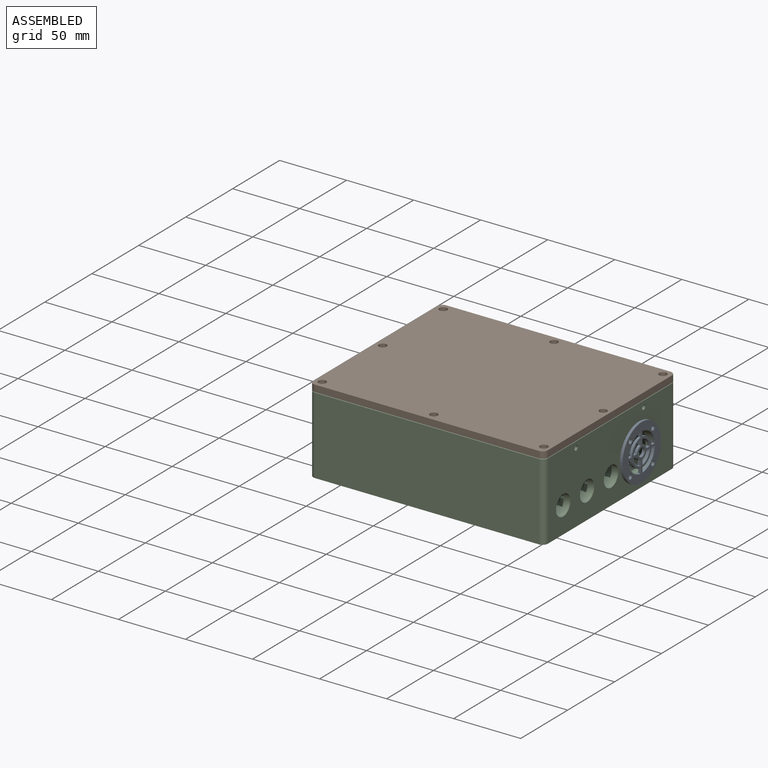
[diagram: assembled view]
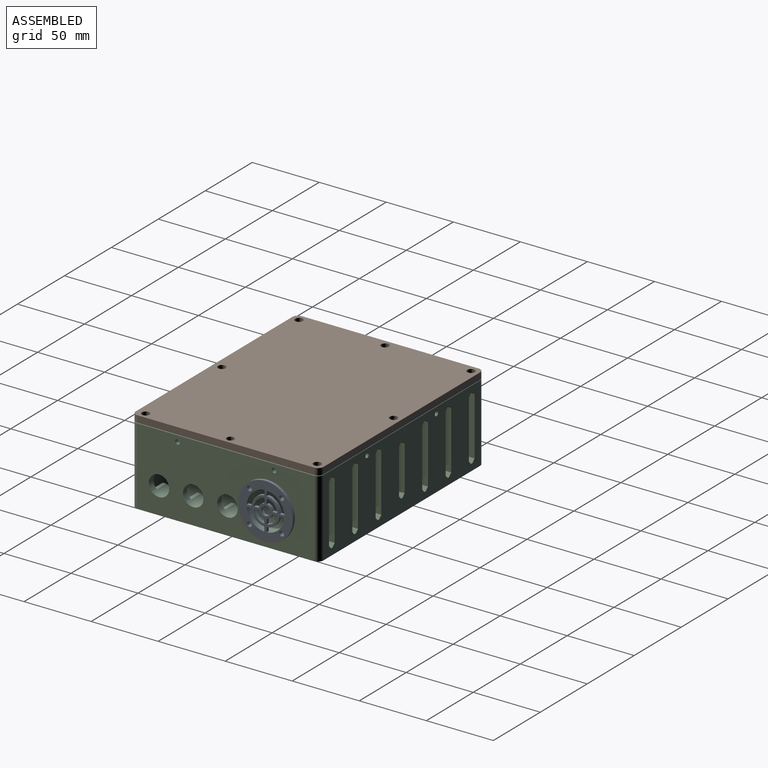
[diagram: assembled view, second angle]
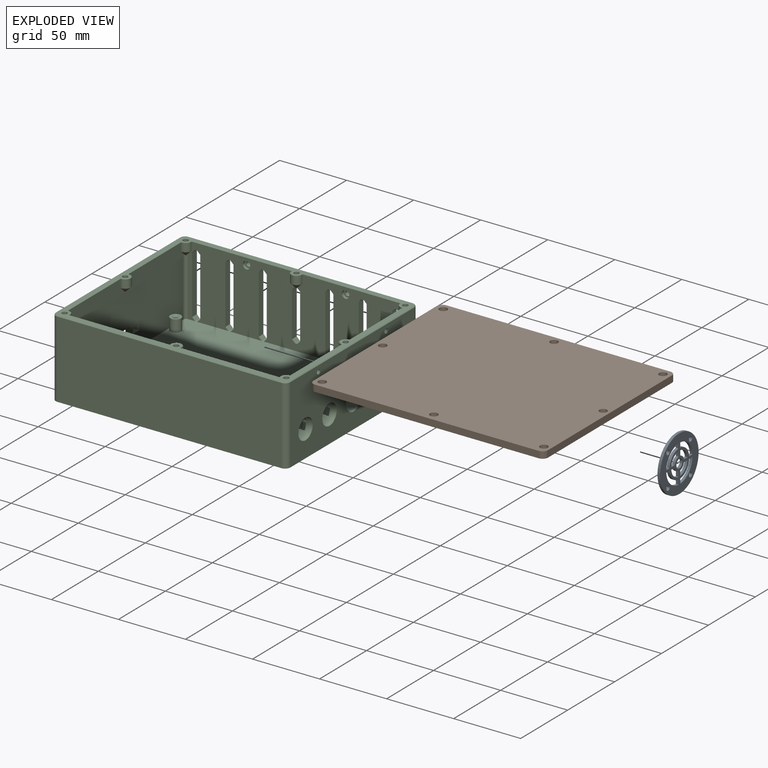
[diagram: exploded view]
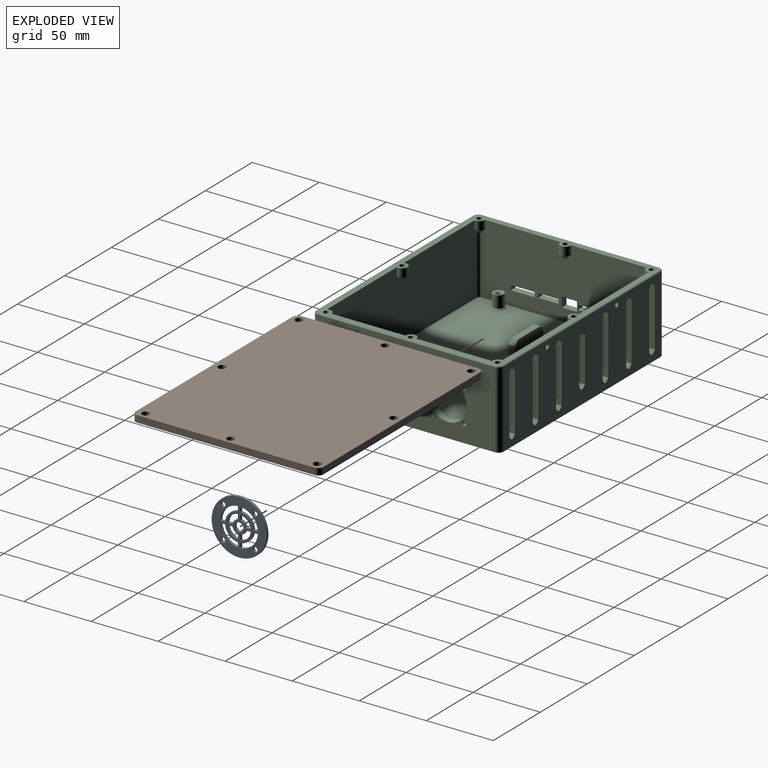
[diagram: exploded view, second angle]
ASSEMBLY  parts=3 mates=2
PART A: 40 faces, bbox 2x41x41 mm
  f0: plane 3.51x2mm, normal (0,0,1), area 7mm2, adj f17,f30,f32,f33
  f1: plane 3.74x2mm, normal (0,0,1), area 7.5mm2, adj f17,f21,f31,f32
  f2: plane 3.74x2mm, normal (0,0,1), area 7.5mm2, adj f12,f17,f20,f32
  f3: plane 3.74x2mm, normal (0,0,-1), area 7.5mm2, adj f10,f16,f17,f32
  f4: plane 3.51x2mm, normal (0,0,-1), area 7mm2, adj f13,f17,f18,f32
  f5: plane 3.74x2mm, normal (0,0,-1), area 7.5mm2, adj f9,f11,f17,f32
  f6: plane 3.51x2mm, normal (0,0,-1), area 7mm2, adj f14,f17,f32,f34
  f7: plane 3.51x2mm, normal (0,0,1), area 7mm2, adj f8,f15,f17,f32
  f8: cylinder r=14mm len=13.07mm, axis (-1,0,0), area 40.4mm2, adj f7,f17,f26,f32
  f9: cylinder r=5mm len=4.02mm, axis (-1,0,0), area 12.1mm2, adj f5,f17,f25,f32
  f10: cylinder r=5mm len=4.02mm, axis (-1,0,0), area 12.1mm2, adj f3,f17,f23,f32
  f11: cylinder r=8.7mm len=7.75mm, axis (-1,0,0), area 23.7mm2, adj f5,f17,f25,f32
  f12: cylinder r=8.7mm len=7.75mm, axis (-1,0,0), area 23.7mm2, adj f2,f17,f24,f32
  f13: cylinder r=10.5mm len=9.56mm, axis (-1,0,0), area 29.4mm2, adj f4,f17,f29,f32
  f14: cylinder r=10.5mm len=9.56mm, axis (-1,0,0), area 29.4mm2, adj f6,f17,f27,f32
  f15: cylinder r=10.5mm len=9.56mm, axis (-1,0,0), area 29.4mm2, adj f7,f17,f26,f32
  f16: cylinder r=8.7mm len=7.75mm, axis (-1,0,0), area 23.7mm2, adj f3,f17,f23,f32
  f17: plane 41x41mm, normal (1,0,0), area 872.9mm2, adj f0,f1,f2,f3,f4,f5,f6,f7
  f18: cylinder r=14mm len=13.07mm, axis (-1,0,0), area 40.4mm2, adj f4,f17,f29,f32
  f19: cylinder r=3.2mm len=6.4mm, axis (-1,0,0), area 40.2mm2, adj f17,f32
  f20: cylinder r=5mm len=4.02mm, axis (-1,0,0), area 12.1mm2, adj f2,f17,f24,f32
  f21: cylinder r=5mm len=4.02mm, axis (-1,0,0), area 12.1mm2, adj f1,f17,f22,f32
  f22: plane 3.74x2mm, normal (0,-1,0), area 7.5mm2, adj f17,f21,f31,f32
  f23: plane 3.74x2mm, normal (0,-1,0), area 7.5mm2, adj f10,f16,f17,f32
  f24: plane 3.74x2mm, normal (0,1,0), area 7.5mm2, adj f12,f17,f20,f32
  f25: plane 3.74x2mm, normal (0,1,0), area 7.5mm2, adj f9,f11,f17,f32
  f26: plane 3.51x2mm, normal (0,-1,0), area 7mm2, adj f8,f15,f17,f32
  f27: plane 3.51x2mm, normal (0,-1,0), area 7mm2, adj f14,f17,f32,f34
  f28: plane 3.51x2mm, normal (0,1,0), area 7mm2, adj f17,f30,f32,f33
  f29: plane 3.51x2mm, normal (0,1,0), area 7mm2, adj f13,f17,f18,f32
  f30: cylinder r=10.5mm len=9.56mm, axis (-1,0,0), area 29.4mm2, adj f0,f17,f28,f32
  f31: cylinder r=8.7mm len=7.75mm, axis (-1,0,0), area 23.7mm2, adj f1,f17,f22,f32
  f32: plane 41x41mm, normal (-1,0,0), area 872.9mm2, adj f0,f1,f2,f3,f4,f5,f6,f7
  f33: cylinder r=14mm len=13.07mm, axis (-1,0,0), area 40.4mm2, adj f0,f17,f28,f32
  f34: cylinder r=14mm len=13.07mm, axis (-1,0,0), area 40.4mm2, adj f6,f17,f27,f32
  f35: cylinder r=1.75mm len=3.5mm, axis (1,0,0), area 22mm2, adj f17,f32
  f36: cylinder r=1.75mm len=3.5mm, axis (1,0,0), area 22mm2, adj f17,f32
  f37: cylinder r=1.75mm len=3.5mm, axis (1,0,0), area 22mm2, adj f17,f32
  f38: cylinder r=1.75mm len=3.5mm, axis (1,0,0), area 22mm2, adj f17,f32
  f39: cylinder r=20.5mm len=41mm, axis (1,0,0), area 257.6mm2, adj f17,f32
PART B: 44 faces, bbox 175x140x7.7 mm
  f0: cylinder r=2.9mm len=5.8mm, axis (0,0,-1), area 58.3mm2, adj f1,f42
  f1: plane 5.8x5.8mm, normal (0,0,1), area 16.8mm2, adj f0,f18
  f2: cylinder r=2.9mm len=5.8mm, axis (0,0,-1), area 58.3mm2, adj f3,f42
  f3: plane 5.8x5.8mm, normal (0,0,1), area 16.8mm2, adj f2,f19
  f4: cylinder r=2.9mm len=5.8mm, axis (0,0,-1), area 58.3mm2, adj f5,f42
  f5: plane 5.8x5.8mm, normal (0,0,1), area 16.8mm2, adj f4,f16
  f6: cylinder r=2.9mm len=5.8mm, axis (0,0,-1), area 58.3mm2, adj f7,f42
  f7: plane 5.8x5.8mm, normal (0,0,1), area 16.8mm2, adj f6,f17
  f8: cylinder r=2.9mm len=5.8mm, axis (0,0,-1), area 58.3mm2, adj f9,f42
  f9: plane 5.8x5.8mm, normal (0,0,1), area 16.8mm2, adj f8,f22
  f10: cylinder r=2.9mm len=5.8mm, axis (0,0,-1), area 58.3mm2, adj f11,f42
  f11: plane 5.8x5.8mm, normal (0,0,1), area 16.8mm2, adj f10,f23
  f12: cylinder r=2.79mm len=5.58mm, axis (0,0,-1), area 56.1mm2, adj f13,f42
  f13: plane 5.58x5.58mm, normal (0,0,1), area 14.8mm2, adj f12,f20
  f14: cylinder r=2.9mm len=5.8mm, axis (0,0,-1), area 58.3mm2, adj f15,f42
  f15: plane 5.8x5.8mm, normal (0,0,1), area 16.8mm2, adj f14,f21
  f16: cylinder r=1.75mm len=4.48mm, axis (0,0,-1), area 30.1mm2, adj f5,f24,f28,f31,f43
  f17: cylinder r=1.75mm len=4.48mm, axis (0,0,-1), area 28.4mm2, adj f7,f26,f28,f31,f41
  f18: cylinder r=1.75mm len=4.48mm, axis (0,0,-1), area 35.8mm2, adj f1,f25,f26,f28,f31
  f19: cylinder r=1.75mm len=4.48mm, axis (0,0,-1), area 40.1mm2, adj f3,f28,f29,f31,f40
  f20: cylinder r=1.75mm len=4.48mm, axis (0,0,-1), area 32.7mm2, adj f13,f27,f28,f31,f43
  f21: cylinder r=1.75mm len=4.48mm, axis (0,0,-1), area 35.2mm2, adj f15,f28,f30,f31,f41
  f22: cylinder r=1.75mm len=4.48mm, axis (0,0,-1), area 28.4mm2, adj f9,f25,f27,f28,f31
  f23: cylinder r=1.75mm len=4.48mm, axis (0,0,-1), area 28.6mm2, adj f11,f28,f29,f30,f31
  f24: cylinder r=1.62mm len=2.68mm, axis (0,0,-1), area 2.1mm2, adj f16,f28,f31,f40
  f25: plane 77.7x2.68mm, normal (0,1,0), area 208.5mm2, adj f18,f22,f28,f31
  f26: plane 79.2x2.68mm, normal (0,1,0), area 212.6mm2, adj f17,f18,f28,f31
  f27: plane 60.97x2.68mm, normal (1,0,0), area 163.6mm2, adj f20,f22,f28,f31
  f28: plane 164.3x129.3mm, normal (0,0,-1), area 21208mm2, adj f16,f17,f18,f19,f20,f21,f22,f23
  f29: plane 79.75x2.68mm, normal (0,-1,0), area 214mm2, adj f19,f23,f28,f31
  f30: plane 60.79x2.68mm, normal (-1,0,0), area 163.2mm2, adj f21,f23,f28,f31
  f31: plane 175x140mm, normal (0,0,-1), area 3201.3mm2, adj f16,f17,f18,f19,f20,f21,f22,f23
  f32: plane 167x5mm, normal (0,1,0), area 835mm2, adj f31,f33,f39,f42
  f33: cylinder r=4mm len=5mm, axis (0,0,1), area 31.4mm2, adj f31,f32,f34,f42
  f34: plane 132x5mm, normal (1,0,0), area 660mm2, adj f31,f33,f35,f42
  f35: cylinder r=4mm len=5mm, axis (0,0,1), area 31.4mm2, adj f31,f34,f36,f42
  f36: plane 167x5mm, normal (0,-1,0), area 835mm2, adj f31,f35,f37,f42
  f37: cylinder r=4mm len=5mm, axis (0,0,1), area 31.4mm2, adj f31,f36,f38,f42
  f38: plane 132x5mm, normal (-1,0,0), area 660mm2, adj f31,f37,f39,f42
  f39: cylinder r=4mm len=5mm, axis (0,0,1), area 31.4mm2, adj f31,f32,f38,f42
  f40: plane 78.33x2.68mm, normal (0,-1,0), area 210.2mm2, adj f19,f24,f28,f31
  f41: plane 60.81x2.68mm, normal (-1,0,0), area 163.2mm2, adj f17,f21,f28,f31
  f42: plane 175x140mm, normal (0,0,1), area 24276.9mm2, adj f0,f2,f4,f6,f8,f10,f12,f14
  f43: plane 59.75x2.68mm, normal (1,0,0), area 160.4mm2, adj f16,f20,f28,f31
PART C: 219 faces, bbox 175.4x140.4x58.4 mm
  f0: cylinder r=1.75mm len=3.5mm, axis (-1,0,0), area 22mm2, adj f2,f131
  f1: cylinder r=1.75mm len=3.5mm, axis (-1,0,0), area 22mm2, adj f4,f131
  f2: plane 5.65x5.65mm, normal (-1,0,0), area 15.5mm2, adj f0,f3
  f3: cylinder r=2.82mm len=5.65mm, axis (-1,0,0), area 53.2mm2, adj f2,f6
  f4: plane 5.65x5.65mm, normal (-1,0,0), area 15.5mm2, adj f1,f5
  f5: cylinder r=2.82mm len=5.65mm, axis (-1,0,0), area 53.2mm2, adj f4,f6
  f6: plane 126x53mm, normal (-1,0,0), area 4918.9mm2, adj f3,f5,f25,f29,f65,f66,f67,f68
  f7: cylinder r=2.82mm len=5.65mm, axis (0,1,0), area 35.5mm2, adj f8,f77
  f8: plane 5.65x5.65mm, normal (0,-1,0), area 15.5mm2, adj f7,f11
  f9: cylinder r=2.82mm len=5.65mm, axis (0,1,0), area 35.5mm2, adj f10,f77
  f10: plane 5.65x5.65mm, normal (0,-1,0), area 15.5mm2, adj f9,f12
  f11: cylinder r=1.75mm len=3.5mm, axis (0,1,0), area 33mm2, adj f8,f37
  f12: cylinder r=1.75mm len=3.5mm, axis (0,1,0), area 33mm2, adj f10,f37
  f13: cone r=3.75mm half-angle=45deg, axis (0,0,-1), area 4.2mm2, adj f14,f20,f24,f25
  f14: plane 167x0.5mm, normal (0,0.71,0.71), area 118.1mm2, adj f13,f15,f25,f37
  f15: cone r=3.75mm half-angle=45deg, axis (0,0,-1), area 4.2mm2, adj f14,f16,f25,f130
  f16: plane 132x0.5mm, normal (0.71,0,0.71), area 93.3mm2, adj f15,f17,f25,f131
  f17: cone r=3.75mm half-angle=45deg, axis (0,0,-1), area 4.2mm2, adj f16,f18,f25,f129
  f18: plane 167x0.5mm, normal (0,-0.71,0.71), area 118.1mm2, adj f17,f19,f21,f25
  f19: cone r=3.75mm half-angle=45deg, axis (0,0,-1), area 4.2mm2, adj f18,f20,f22,f25
  f20: plane 132x0.5mm, normal (-0.71,0,0.71), area 93.3mm2, adj f13,f19,f23,f25
  f21: plane 167x57.5mm, normal (0,-1,0), area 9602.5mm2, adj f18,f22,f129,f218
  f22: cylinder r=4mm len=57.5mm, axis (0,0,-1), area 361.3mm2, adj f19,f21,f23,f218
  f23: plane 132x57.5mm, normal (-1,0,0), area 7367.8mm2, adj f20,f22,f24,f82,f83,f84,f85,f86
  f24: cylinder r=4mm len=57.5mm, axis (0,0,-1), area 361.3mm2, adj f13,f23,f37,f218
  f25: plane 174x139mm, normal (0,0,1), area 2821.9mm2, adj f6,f13,f14,f15,f16,f17,f18,f19
  f26: plane 5x2.25mm, normal (0.71,0,0.71), area 15.9mm2, adj f27,f30,f37,f77
  f27: plane 5x1.5mm, normal (0,0,1), area 7.5mm2, adj f26,f28,f37,f77
  f28: plane 5x2.25mm, normal (-0.71,0,0.71), area 15.9mm2, adj f27,f37,f77,f78
  f29: plane 165x135mm, normal (0,0,1), area 20447.1mm2, adj f6,f37,f71,f73,f74,f77,f90,f91
  f30: plane 33.5x5mm, normal (1,0,0), area 167.5mm2, adj f26,f31,f37,f77
  f31: plane 5x2.25mm, normal (0.71,0,-0.71), area 15.9mm2, adj f30,f32,f37,f77
  f32: plane 5x1.5mm, normal (0,0,-1), area 7.5mm2, adj f31,f33,f37,f77
  f33: plane 5x2.25mm, normal (-0.71,0,-0.71), area 15.9mm2, adj f32,f37,f77,f78
  f34: plane 3.72x1.36mm, normal (0,0,1), area 3.7mm2, adj f35,f38
  f35: plane 3.72x3.22mm, normal (0,-1,0), area 12mm2, adj f34,f36,f38
  f36: plane 3.9x2.54mm, normal (0,0,1), area 8.2mm2, adj f35,f38
  f37: plane 167x57.5mm, normal (0,1,0), area 7698.1mm2, adj f11,f12,f14,f24,f26,f27,f28,f29
  f38: cylinder r=1.95mm len=7mm, axis (0,0,-1), area 69.9mm2, adj f25,f34,f35,f36
  f39: cylinder r=1.95mm len=7mm, axis (0,0,-1), area 85.8mm2, adj f25,f40
  f40: plane 3.9x3.9mm, normal (0,0,1), area 11.9mm2, adj f39
  f41: cylinder r=1.95mm len=7mm, axis (0,0,-1), area 85.8mm2, adj f25,f42
  f42: plane 3.9x3.9mm, normal (0,0,1), area 11.9mm2, adj f41
  f43: cylinder r=1.95mm len=7mm, axis (0,0,-1), area 85.8mm2, adj f25,f44
  f44: plane 3.9x3.9mm, normal (0,0,1), area 11.9mm2, adj f43
  f45: cylinder r=1.95mm len=7mm, axis (0,0,-1), area 85.8mm2, adj f25,f46
  f46: plane 3.9x3.9mm, normal (0,0,1), area 11.9mm2, adj f45
  f47: cylinder r=1.95mm len=7mm, axis (0,0,-1), area 85.8mm2, adj f25,f48
  f48: plane 3.9x3.9mm, normal (0,0,1), area 11.9mm2, adj f47
  f49: cylinder r=1.95mm len=7mm, axis (0,0,-1), area 85.8mm2, adj f25,f50
  f50: plane 3.9x3.9mm, normal (0,0,1), area 11.9mm2, adj f49
  f51: cylinder r=1.95mm len=7mm, axis (0,0,-1), area 85.8mm2, adj f25,f52
  f52: plane 3.9x3.9mm, normal (0,0,1), area 11.9mm2, adj f51
  f53: cone r=2.15mm half-angle=45deg, axis (0,0,1), area 41.8mm2, adj f54,f76,f77
  f54: plane 0.6x0.6mm, normal (0,0,-1), area 0.3mm2, adj f53
  f55: cone r=2.15mm half-angle=45deg, axis (0,0,1), area 23.4mm2, adj f56,f74,f75,f77,f92
  f56: cylinder r=4mm len=6.3mm, axis (0,0,-1), area 47mm2, adj f25,f55,f74,f77
  f57: cone r=2.15mm half-angle=45deg, axis (0,0,1), area 40.5mm2, adj f58,f59,f74
  f58: cylinder r=4mm len=8mm, axis (0,0,-1), area 85.2mm2, adj f25,f57,f74
  f59: plane 0.6x0.6mm, normal (0,0,-1), area 0.3mm2, adj f57
  f60: cone r=2.15mm half-angle=45deg, axis (0,0,1), area 23.6mm2, adj f61,f71,f72,f73,f74
  f61: cylinder r=4mm len=6.3mm, axis (0,0,-1), area 47.3mm2, adj f25,f60,f71,f74
  f62: cone r=2.15mm half-angle=45deg, axis (0,0,1), area 49.9mm2, adj f63,f64,f71
  f63: cylinder r=4mm len=8mm, axis (0,0,-1), area 96.3mm2, adj f25,f62,f71
  f64: plane 0.6x0.6mm, normal (0,0,-1), area 0.3mm2, adj f62
  f65: cone r=2.15mm half-angle=45deg, axis (0,0,1), area 26.4mm2, adj f6,f66,f71,f81,f90
  f66: cylinder r=4mm len=6.3mm, axis (0,0,-1), area 51.5mm2, adj f6,f25,f65,f71
  f67: cone r=2.15mm half-angle=45deg, axis (0,0,1), area 35.3mm2, adj f6,f68,f80
  f68: cylinder r=4mm len=8mm, axis (0,0,-1), area 79.2mm2, adj f6,f25,f67
  f69: cone r=2.15mm half-angle=45deg, axis (0,0,1), area 23.4mm2, adj f6,f70,f77,f79,f91
  f70: cylinder r=4mm len=6.3mm, axis (0,0,-1), area 47mm2, adj f6,f25,f69,f77
  f71: plane 161.38x53.38mm, normal (0,1,0), area 8445.7mm2, adj f25,f29,f60,f61,f62,f63,f65,f66
  f72: plane 0.53x0.46mm, normal (0,0,-1), area 0.1mm2, adj f60,f73
  f73: cylinder r=2mm len=44.53mm, axis (0,0,-1), area 136.7mm2, adj f29,f60,f71,f72,f74
  f74: plane 126x53mm, normal (1,0,0), area 6349.6mm2, adj f25,f29,f55,f56,f57,f58,f60,f61
  f75: plane 0.5x0.5mm, normal (0,0,-1), area 0.1mm2, adj f55,f92
  f76: cylinder r=4mm len=8mm, axis (0,0,-1), area 86.6mm2, adj f25,f53,f77
  f77: plane 161x53mm, normal (0,-1,0), area 6494.6mm2, adj f7,f9,f25,f26,f27,f28,f29,f30
  f78: plane 33.5x5mm, normal (-1,0,0), area 167.5mm2, adj f28,f33,f37,f77
  f79: plane 0.5x0.5mm, normal (0,0,-1), area 0.1mm2, adj f69,f91
  f80: plane 0.6x0.3mm, normal (0,0,-1), area 0.1mm2, adj f6,f67
  f81: plane 0.6x0.31mm, normal (0,0,-1), area 0.1mm2, adj f6,f65,f90
  f82: plane 5x3.51mm, normal (0,1,0), area 17.6mm2, adj f23,f74,f83,f85
  f83: plane 6.57x5mm, normal (0,0,-1), area 32.8mm2, adj f23,f74,f82,f84
  f84: plane 5x3.51mm, normal (0,-1,0), area 17.6mm2, adj f23,f74,f83,f85
  f85: plane 6.57x5mm, normal (0,0,1), area 32.8mm2, adj f23,f74,f82,f84
  f86: plane 7.6x5mm, normal (0,1,0), area 38mm2, adj f23,f74,f87,f89
  f87: plane 11.25x5mm, normal (0,0,-1), area 56.3mm2, adj f23,f74,f86,f88
  f88: plane 7.6x5mm, normal (0,-1,0), area 38mm2, adj f23,f74,f87,f89
  f89: plane 11.25x5mm, normal (0,0,1), area 56.3mm2, adj f23,f74,f86,f88
  f90: cylinder r=2mm len=45.4mm, axis (0,0,1), area 138.3mm2, adj f6,f29,f65,f71,f81
  f91: cylinder r=2mm len=44.23mm, axis (0,0,1), area 136.7mm2, adj f6,f29,f69,f77,f79
  f92: cylinder r=2mm len=44.23mm, axis (0,0,1), area 136.7mm2, adj f29,f55,f74,f75,f77
  f93: plane 10x2mm, normal (0,0.71,0.71), area 28.3mm2, adj f6,f29,f123,f125
  f94: plane 10x2mm, normal (0,-0.71,0.71), area 28.3mm2, adj f6,f29,f122,f125
  f95: plane 10x2mm, normal (0,0.71,0.71), area 28.3mm2, adj f6,f29,f118,f120
  f96: plane 10x2mm, normal (0,-0.71,0.71), area 28.3mm2, adj f6,f29,f97,f120
  f97: plane 10x7.16mm, normal (0,-1,0), area 62mm2, adj f6,f96,f103,f104,f109,f113,f117,f120
  f98: plane 10x2mm, normal (0,-0.71,0.71), area 28.3mm2, adj f6,f29,f99,f116
  f99: plane 10x7.16mm, normal (0,-1,0), area 62.1mm2, adj f6,f98,f102,f106,f110,f112,f115,f116
  f100: plane 10x2mm, normal (0,0.71,0.71), area 28.3mm2, adj f6,f29,f101,f116
  f101: plane 10x7.16mm, normal (0,1,0), area 62.1mm2, adj f6,f100,f102,f106,f110,f112,f114,f116
  f102: cylinder r=10.75mm len=15.24mm, axis (-1,0,0), area 53.5mm2, adj f99,f101,f106,f110
  f103: cylinder r=10.75mm len=15.39mm, axis (-1,0,0), area 54.2mm2, adj f97,f104,f109,f118
  f104: plane 15.39x5.55mm, normal (1,0,0), area 38.6mm2, adj f97,f103,f113,f118
  f105: plane 15.39x5.55mm, normal (1,0,0), area 38.6mm2, adj f107,f111,f122,f123
  f106: plane 15.24x5.47mm, normal (1,0,0), area 38.1mm2, adj f99,f101,f102,f112
  f107: cylinder r=10.75mm len=15.39mm, axis (-1,0,0), area 54.2mm2, adj f105,f108,f122,f123
  f108: plane 15.39x5.55mm, normal (-1,0,0), area 38.6mm2, adj f107,f111,f122,f123
  f109: plane 15.39x5.55mm, normal (-1,0,0), area 38.6mm2, adj f97,f103,f113,f118
  f110: plane 15.24x5.47mm, normal (-1,0,0), area 38.1mm2, adj f99,f101,f102,f112
  f111: cylinder r=13.05mm len=15.39mm, axis (-1,0,0), area 52mm2, adj f105,f108,f122,f123
  f112: cylinder r=13.05mm len=15.24mm, axis (-1,0,0), area 51.4mm2, adj f99,f101,f106,f110
  f113: cylinder r=13.05mm len=15.39mm, axis (-1,0,0), area 52mm2, adj f97,f104,f109,f118
  f114: plane 10x2.45mm, normal (0,0,1), area 24.5mm2, adj f6,f101,f116,f126
  f115: plane 10x2.45mm, normal (0,0,1), area 24.5mm2, adj f6,f99,f116,f126
  f116: plane 19.24x9.16mm, normal (-1,0,0), area 129.3mm2, adj f29,f98,f99,f100,f101,f114,f115,f126
  f117: plane 10x2.53mm, normal (0,0,1), area 25.3mm2, adj f6,f97,f120,f127
  f118: plane 10x7.16mm, normal (0,1,0), area 62mm2, adj f6,f95,f103,f104,f109,f113,f119,f120
  f119: plane 10x2.53mm, normal (0,0,1), area 25.3mm2, adj f6,f118,f120,f127
  f120: plane 19.39x9.16mm, normal (-1,0,0), area 130.7mm2, adj f29,f95,f96,f97,f117,f118,f119,f127
  f121: plane 10x2.53mm, normal (0,0,1), area 25.3mm2, adj f6,f122,f125,f128
  f122: plane 10x7.16mm, normal (0,-1,0), area 62mm2, adj f6,f94,f105,f107,f108,f111,f121,f125
  f123: plane 10x7.16mm, normal (0,1,0), area 62mm2, adj f6,f93,f105,f107,f108,f111,f124,f125
  f124: plane 10x2.53mm, normal (0,0,1), area 25.3mm2, adj f6,f123,f125,f128
  f125: plane 19.39x9.16mm, normal (-1,0,0), area 130.7mm2, adj f29,f93,f94,f121,f122,f123,f124,f128
  f126: cylinder r=7.62mm len=15.24mm, axis (-1,0,0), area 352.9mm2, adj f6,f114,f115,f116,f131
  f127: cylinder r=7.62mm len=15.24mm, axis (-1,0,0), area 352.9mm2, adj f6,f117,f119,f120,f131
  f128: cylinder r=7.62mm len=15.24mm, axis (-1,0,0), area 352.9mm2, adj f6,f121,f124,f125,f131
  f129: cylinder r=4mm len=57.5mm, axis (0,0,-1), area 361.3mm2, adj f17,f21,f131,f218
  f130: cylinder r=4mm len=57.5mm, axis (0,0,-1), area 361.3mm2, adj f15,f37,f131,f218
  f131: plane 132x57.5mm, normal (1,0,0), area 6369.3mm2, adj f0,f1,f16,f126,f127,f128,f129,f130
  f132: cone r=4.5mm half-angle=45deg, axis (0,0,-1), area 40mm2, adj f29,f133
  f133: cylinder r=4mm len=9mm, axis (0,0,-1), area 226.2mm2, adj f132,f161
  f134: cone r=4.5mm half-angle=45deg, axis (0,0,-1), area 40mm2, adj f29,f135
  f135: cylinder r=4mm len=9mm, axis (0,0,-1), area 226.2mm2, adj f134,f157
  f136: cone r=4.5mm half-angle=45deg, axis (0,0,-1), area 40mm2, adj f29,f137
  f137: cylinder r=4mm len=9mm, axis (0,0,-1), area 226.2mm2, adj f136,f153
  f138: cone r=4.5mm half-angle=45deg, axis (0,0,-1), area 40mm2, adj f29,f139
  f139: cylinder r=4mm len=9mm, axis (0,0,-1), area 226.2mm2, adj f138,f149
  f140: plane 5x3.23mm, normal (0.71,0,0.71), area 22.8mm2, adj f141,f142,f145,f146
  f141: plane 23.54x5mm, normal (0,0,1), area 117.7mm2, adj f140,f142,f143,f146
  f142: plane 30x10mm, normal (0,1,0), area 289.6mm2, adj f29,f140,f141,f143,f144,f145
  f143: plane 5x3.23mm, normal (-0.71,0,0.71), area 22.8mm2, adj f141,f142,f144,f146
  f144: plane 6.77x5mm, normal (-1,0,0), area 33.9mm2, adj f29,f142,f143,f146
  f145: plane 6.77x5mm, normal (1,0,0), area 33.9mm2, adj f29,f140,f142,f146
  f146: plane 30x10mm, normal (0,-1,0), area 289.6mm2, adj f29,f140,f141,f143,f144,f145
  f147: cone r=2mm half-angle=45deg, axis (0,0,1), area 17.8mm2, adj f148,f149
  f148: cylinder r=1.5mm len=5mm, axis (0,0,-1), area 47.1mm2, adj f147,f150
  f149: plane 8x8mm, normal (0,0,1), area 30.6mm2, adj f139,f147
  f150: plane 3x3mm, normal (0,0,1), area 7.1mm2, adj f148
  f151: cone r=2mm half-angle=45deg, axis (0,0,1), area 17.8mm2, adj f152,f153
  f152: cylinder r=1.5mm len=5mm, axis (0,0,-1), area 47.1mm2, adj f151,f154
  f153: plane 8x8mm, normal (0,0,1), area 30.6mm2, adj f137,f151
  f154: plane 3x3mm, normal (0,0,1), area 7.1mm2, adj f152
  f155: cone r=2mm half-angle=45deg, axis (0,0,1), area 17.8mm2, adj f156,f157
  f156: cylinder r=1.5mm len=5mm, axis (0,0,-1), area 47.1mm2, adj f155,f158
  f157: plane 8x8mm, normal (0,0,1), area 30.6mm2, adj f135,f155
  f158: plane 3x3mm, normal (0,0,1), area 7.1mm2, adj f156
  f159: cone r=2mm half-angle=45deg, axis (0,0,1), area 17.8mm2, adj f160,f161
  f160: cylinder r=1.5mm len=5mm, axis (0,0,-1), area 47.1mm2, adj f159,f162
  f161: plane 8x8mm, normal (0,0,1), area 30.6mm2, adj f133,f159
  f162: plane 3x3mm, normal (0,0,1), area 7.1mm2, adj f160
  f163: plane 5x2.25mm, normal (-0.71,0,-0.71), area 15.9mm2, adj f37,f77,f164,f186
  f164: plane 43.5x5mm, normal (-1,0,0), area 217.5mm2, adj f37,f77,f163,f187
  f165: plane 5x2.25mm, normal (-0.71,0,-0.71), area 15.9mm2, adj f37,f77,f166,f184
  f166: plane 43.5x5mm, normal (-1,0,0), area 217.5mm2, adj f37,f77,f165,f188
  f167: plane 5x2.25mm, normal (-0.71,0,-0.71), area 15.9mm2, adj f37,f77,f168,f182
  f168: plane 43.5x5mm, normal (-1,0,0), area 217.5mm2, adj f37,f77,f167,f189
  f169: plane 5x2.25mm, normal (-0.71,0,-0.71), area 15.9mm2, adj f37,f77,f170,f180
  f170: plane 43.5x5mm, normal (-1,0,0), area 217.5mm2, adj f37,f77,f169,f190
  f171: plane 5x2.25mm, normal (-0.71,0,-0.71), area 15.9mm2, adj f37,f77,f172,f178
  f172: plane 43.5x5mm, normal (-1,0,0), area 217.5mm2, adj f37,f77,f171,f191
  f173: plane 5x2.25mm, normal (-0.71,0,-0.71), area 15.9mm2, adj f37,f77,f174,f176
  f174: plane 43.5x5mm, normal (-1,0,0), area 217.5mm2, adj f37,f77,f173,f192
  f175: plane 5x2.25mm, normal (0.71,0,-0.71), area 15.9mm2, adj f37,f77,f176,f204
  f176: plane 5x1.5mm, normal (0,0,-1), area 7.5mm2, adj f37,f77,f173,f175
  f177: plane 5x2.25mm, normal (0.71,0,-0.71), area 15.9mm2, adj f37,f77,f178,f201
  f178: plane 5x1.5mm, normal (0,0,-1), area 7.5mm2, adj f37,f77,f171,f177
  f179: plane 5x2.25mm, normal (0.71,0,-0.71), area 15.9mm2, adj f37,f77,f180,f199
  f180: plane 5x1.5mm, normal (0,0,-1), area 7.5mm2, adj f37,f77,f169,f179
  f181: plane 5x2.25mm, normal (0.71,0,-0.71), area 15.9mm2, adj f37,f77,f182,f203
  f182: plane 5x1.5mm, normal (0,0,-1), area 7.5mm2, adj f37,f77,f167,f181
  f183: plane 5x2.25mm, normal (0.71,0,-0.71), area 15.9mm2, adj f37,f77,f184,f202
  f184: plane 5x1.5mm, normal (0,0,-1), area 7.5mm2, adj f37,f77,f165,f183
  f185: plane 5x2.25mm, normal (0.71,0,-0.71), area 15.9mm2, adj f37,f77,f186,f200
  f186: plane 5x1.5mm, normal (0,0,-1), area 7.5mm2, adj f37,f77,f163,f185
  f187: plane 5x2.25mm, normal (-0.71,0,0.71), area 15.9mm2, adj f29,f37,f77,f164
  f188: plane 5x2.25mm, normal (-0.71,0,0.71), area 15.9mm2, adj f29,f37,f77,f166
  f189: plane 5x2.25mm, normal (-0.71,0,0.71), area 15.9mm2, adj f29,f37,f77,f168
  f190: plane 5x2.25mm, normal (-0.71,0,0.71), area 15.9mm2, adj f29,f37,f77,f170
  f191: plane 5x2.25mm, normal (-0.71,0,0.71), area 15.9mm2, adj f29,f37,f77,f172
  f192: plane 5x2.25mm, normal (-0.71,0,0.71), area 15.9mm2, adj f29,f37,f77,f174
  f193: plane 5x2.25mm, normal (0.71,0,0.71), area 15.9mm2, adj f29,f37,f77,f204
  f194: plane 5x2.25mm, normal (0.71,0,0.71), area 15.9mm2, adj f29,f37,f77,f201
  f195: plane 5x2.25mm, normal (0.71,0,0.71), area 15.9mm2, adj f29,f37,f77,f199
  f196: plane 5x2.25mm, normal (0.71,0,0.71), area 15.9mm2, adj f29,f37,f77,f203
  f197: plane 5x2.25mm, normal (0.71,0,0.71), area 15.9mm2, adj f29,f37,f77,f200
  f198: plane 5x2.25mm, normal (0.71,0,0.71), area 15.9mm2, adj f29,f37,f77,f202
  f199: plane 43.5x5mm, normal (1,0,0), area 217.5mm2, adj f37,f77,f179,f195
  f200: plane 43.5x5mm, normal (1,0,0), area 217.5mm2, adj f37,f77,f185,f197
  f201: plane 43.5x5mm, normal (1,0,0), area 217.5mm2, adj f37,f77,f177,f194
  f202: plane 43.5x5mm, normal (1,0,0), area 217.5mm2, adj f37,f77,f183,f198
  f203: plane 43.5x5mm, normal (1,0,0), area 217.5mm2, adj f37,f77,f181,f196
  f204: plane 43.5x5mm, normal (1,0,0), area 217.5mm2, adj f37,f77,f175,f193
  f205: cylinder r=1.75mm len=5mm, axis (-1,0,0), area 55mm2, adj f6,f131
  f206: cylinder r=14mm len=28mm, axis (-1,0,0), area 439.8mm2, adj f6,f131
  f207: cylinder r=1.75mm len=5mm, axis (-1,0,0), area 55mm2, adj f6,f131
  f208: cylinder r=1.75mm len=5mm, axis (-1,0,0), area 55mm2, adj f6,f131
  f209: cylinder r=1.75mm len=5mm, axis (-1,0,0), area 55mm2, adj f6,f131
  f210: plane 5x3.6mm, normal (0,-1,0), area 18mm2, adj f23,f74,f211,f213
  f211: plane 18x5mm, normal (0,0,1), area 90mm2, adj f23,f74,f210,f212
  f212: plane 5x3.6mm, normal (0,1,0), area 18mm2, adj f23,f74,f211,f213
  f213: plane 18x5mm, normal (0,0,-1), area 90mm2, adj f23,f74,f210,f212
  f214: plane 5x3.19mm, normal (0,-1,0), area 16mm2, adj f23,f74,f215,f217
  f215: plane 15.31x5mm, normal (0,0,1), area 76.6mm2, adj f23,f74,f214,f216
  f216: plane 5x3.19mm, normal (0,1,0), area 16mm2, adj f23,f74,f215,f217
  f217: plane 15.31x5mm, normal (0,0,-1), area 76.6mm2, adj f23,f74,f214,f216
  f218: plane 175x140mm, normal (0,0,-1), area 24486.3mm2, adj f21,f22,f23,f24,f37,f129,f130,f131
PLACE A at identity
PLACE B at identity
PLACE C at identity fixed
MATE fastened C.f47 <-> B.f10  axis (0,0,1) through (-63.13,-64.16,43)mm
MATE fastened C.f207 <-> A.f38  axis (1,0,0) through (106.5,19,22)mm
